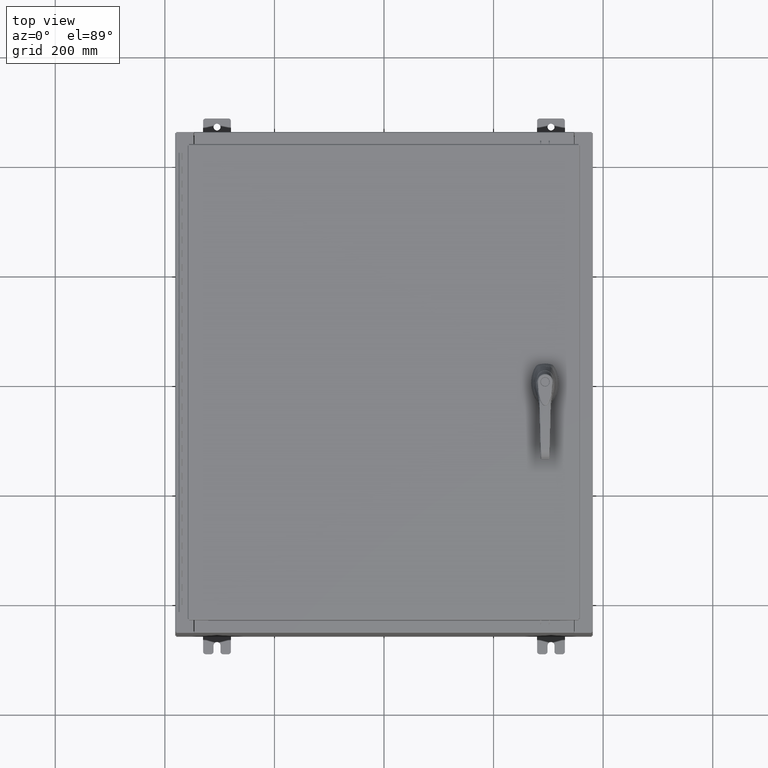
[diagram: clean part render]
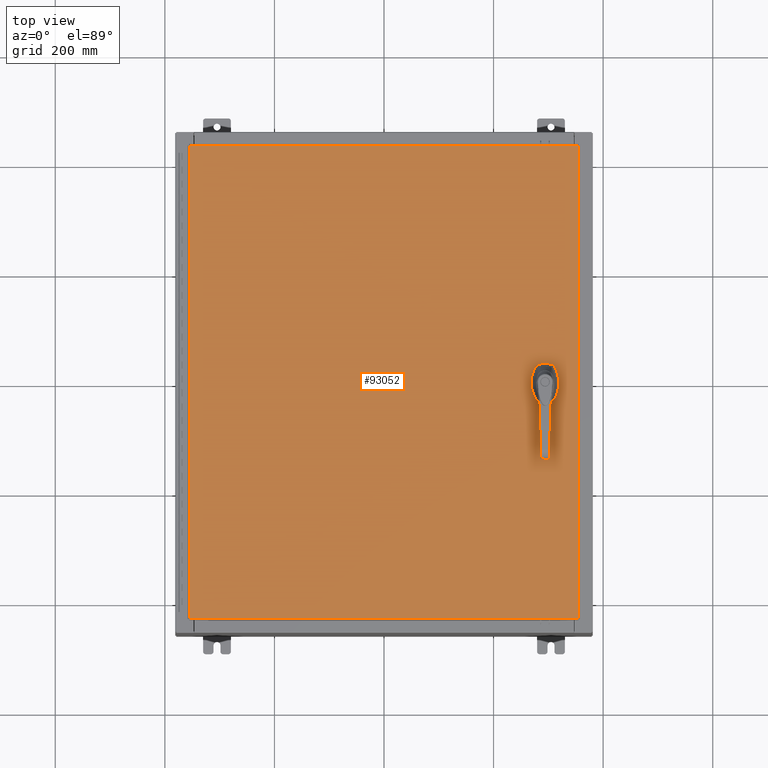
[diagram: same view with one face highlighted and labeled with its STEP entity id]
A machine part, top view. The second image highlights one B-rep face of the part: STEP entity #93052.
In plain terms, the highlighted planar face has unit normal (0, 0, -1).
Its self-contained STEP definition (entity closure, byte-faithful):
#294 = DIRECTION ( 'NONE',  ( 1.000000000000000000, 0.0000000000000000000, 0.0000000000000000000 ) ) ;
#414 = AXIS2_PLACEMENT_3D ( 'NONE', #88970, #31451, #98622 ) ;
#435 = FACE_BOUND ( 'NONE', #65214, .T. ) ;
#1687 = CARTESIAN_POINT ( 'NONE',  ( 11.17500000000006600, -0.2002273707563079800, 0.0000000000000000000 ) ) ;
#3119 = EDGE_CURVE ( 'NONE', #6716, #69160, #123820, .T. ) ;
#5666 = CARTESIAN_POINT ( 'NONE',  ( 11.17500000000006600, 0.0000000000000000000, 0.0000000000000000000 ) ) ;
#6716 = VERTEX_POINT ( 'NONE', #47188 ) ;
#8918 = EDGE_LOOP ( 'NONE', ( #72465, #88493, #74921, #71186 ) ) ;
#10551 = VERTEX_POINT ( 'NONE', #114066 ) ;
#11047 = CARTESIAN_POINT ( 'NONE',  ( 11.57799999999999400, -1.338000000000000100, 0.0000000000000000000 ) ) ;
#11628 = ORIENTED_EDGE ( 'NONE', *, *, #104780, .F. ) ;
#12072 = CARTESIAN_POINT ( 'NONE',  ( 0.0000000000000000000, 0.0000000000000000000, 0.0000000000000000000 ) ) ;
#19707 = CARTESIAN_POINT ( 'NONE',  ( -13.99030000000000700, 17.00630000000000000, -2.048885995248197400E-016 ) ) ;
#20447 = VERTEX_POINT ( 'NONE', #89212 ) ;
#20710 = DIRECTION ( 'NONE',  ( 1.000000000000000000, 0.0000000000000000000, 0.0000000000000000000 ) ) ;
#21605 = VERTEX_POINT ( 'NONE', #1687 ) ;
#21710 = DIRECTION ( 'NONE',  ( 0.0000000000000000000, 1.000000000000000000, 0.0000000000000000000 ) ) ;
#21724 = PLANE ( 'NONE',  #91244 ) ;
#25905 = FACE_BOUND ( 'NONE', #115758, .T. ) ;
#26221 = CIRCLE ( 'NONE', #414, 0.4499999999999168000 ) ;
#26922 = CARTESIAN_POINT ( 'NONE',  ( 11.37777262924368300, 0.4029999999999252000, 0.0000000000000000000 ) ) ;
#27741 = EDGE_CURVE ( 'NONE', #21605, #20447, #26221, .T. ) ;
#29049 = ORIENTED_EDGE ( 'NONE', *, *, #43543, .F. ) ;
#29154 = DIRECTION ( 'NONE',  ( 1.000000000000000000, -0.0000000000000000000, -0.0000000000000000000 ) ) ;
#31244 = EDGE_CURVE ( 'NONE', #20447, #65112, #46743, .T. ) ;
#31251 = CARTESIAN_POINT ( 'NONE',  ( 11.98099999999992200, -0.2002273707563079800, 0.0000000000000000000 ) ) ;
#31332 = DIRECTION ( 'NONE',  ( 0.0000000000000000000, 0.0000000000000000000, -1.000000000000000000 ) ) ;
#31451 = DIRECTION ( 'NONE',  ( -0.0000000000000000000, 0.0000000000000000000, 1.000000000000000000 ) ) ;
#31507 = CIRCLE ( 'NONE', #73901, 0.1715000000000011500 ) ;
#33265 = EDGE_CURVE ( 'NONE', #73392, #43858, #85500, .T. ) ;
#34693 = EDGE_CURVE ( 'NONE', #69160, #112505, #38793, .T. ) ;
#35356 = VERTEX_POINT ( 'NONE', #101693 ) ;
#37567 = AXIS2_PLACEMENT_3D ( 'NONE', #44171, #111246, #53731 ) ;
#38347 = ORIENTED_EDGE ( 'NONE', *, *, #95376, .F. ) ;
#38793 = LINE ( 'NONE', #64008, #109325 ) ;
#38877 = CARTESIAN_POINT ( 'NONE',  ( 11.57799999999999400, 0.0000000000000000000, 0.0000000000000000000 ) ) ;
#43089 = VECTOR ( 'NONE', #69711, 39.37007874015748100 ) ;
#43543 = EDGE_CURVE ( 'NONE', #65112, #68325, #106730, .T. ) ;
#43598 = CIRCLE ( 'NONE', #124320, 0.1715000000000011500 ) ;
#43858 = VERTEX_POINT ( 'NONE', #97514 ) ;
#44171 = CARTESIAN_POINT ( 'NONE',  ( 11.57799999999999400, 0.0000000000000000000, 0.0000000000000000000 ) ) ;
#46743 = LINE ( 'NONE', #103610, #120281 ) ;
#47188 = CARTESIAN_POINT ( 'NONE',  ( 13.99029999999999200, 17.00630000000000300, -1.297627796990525000E-015 ) ) ;
#48532 = DIRECTION ( 'NONE',  ( 1.000000000000000000, 0.0000000000000000000, 0.0000000000000000000 ) ) ;
#49287 = CARTESIAN_POINT ( 'NONE',  ( 11.57799999999999400, 0.0000000000000000000, 0.0000000000000000000 ) ) ;
#49312 = ORIENTED_EDGE ( 'NONE', *, *, #109404, .T. ) ;
#51729 = VECTOR ( 'NONE', #29154, 39.37007874015748100 ) ;
#51895 = ORIENTED_EDGE ( 'NONE', *, *, #31244, .F. ) ;
#53731 = DIRECTION ( 'NONE',  ( 1.000000000000000000, 0.0000000000000000000, 0.0000000000000000000 ) ) ;
#57660 = DIRECTION ( 'NONE',  ( -0.0000000000000000000, 0.0000000000000000000, 1.000000000000000000 ) ) ;
#58698 = CARTESIAN_POINT ( 'NONE',  ( 13.99029999999999200, 17.00630000000000300, -1.297627796990525000E-015 ) ) ;
#58889 = DIRECTION ( 'NONE',  ( 1.000000000000000000, 0.0000000000000000000, 0.0000000000000000000 ) ) ;
#63475 = DIRECTION ( 'NONE',  ( 0.0000000000000000000, -1.000000000000000000, 0.0000000000000000000 ) ) ;
#63804 = VERTEX_POINT ( 'NONE', #76741 ) ;
#64008 = CARTESIAN_POINT ( 'NONE',  ( -13.99030000000000700, 17.00630000000000000, -2.048885995248197400E-016 ) ) ;
#65112 = VERTEX_POINT ( 'NONE', #115888 ) ;
#65214 = EDGE_LOOP ( 'NONE', ( #49312, #29049, #51895, #122987, #72391, #117361, #11628, #91623 ) ) ;
#65563 = LINE ( 'NONE', #117553, #43089 ) ;
#68325 = VERTEX_POINT ( 'NONE', #31251 ) ;
#68552 = EDGE_CURVE ( 'NONE', #43858, #21605, #87768, .T. ) ;
#69160 = VERTEX_POINT ( 'NONE', #19707 ) ;
#69711 = DIRECTION ( 'NONE',  ( -1.000000000000000000, 0.0000000000000000000, 0.0000000000000000000 ) ) ;
#70459 = VECTOR ( 'NONE', #21710, 39.37007874015748100 ) ;
#70817 = ORIENTED_EDGE ( 'NONE', *, *, #74583, .F. ) ;
#71186 = ORIENTED_EDGE ( 'NONE', *, *, #34693, .T. ) ;
#72391 = ORIENTED_EDGE ( 'NONE', *, *, #68552, .F. ) ;
#72465 = ORIENTED_EDGE ( 'NONE', *, *, #86381, .T. ) ;
#72877 = CARTESIAN_POINT ( 'NONE',  ( 11.98099999999992000, 6.538620706741751200E-014, 0.0000000000000000000 ) ) ;
#73392 = VERTEX_POINT ( 'NONE', #26922 ) ;
#73901 = AXIS2_PLACEMENT_3D ( 'NONE', #11047, #78144, #20710 ) ;
#74583 = EDGE_CURVE ( 'NONE', #10551, #63804, #31507, .T. ) ;
#74921 = ORIENTED_EDGE ( 'NONE', *, *, #3119, .T. ) ;
#76741 = CARTESIAN_POINT ( 'NONE',  ( 11.40649999999999200, -1.338000000000000100, 0.0000000000000000000 ) ) ;
#76930 = FACE_OUTER_BOUND ( 'NONE', #8918, .T. ) ;
#77377 = CARTESIAN_POINT ( 'NONE',  ( -13.99030000000000700, -17.00630000000000000, -2.048885995248197400E-016 ) ) ;
#78144 = DIRECTION ( 'NONE',  ( -0.0000000000000000000, 0.0000000000000000000, 1.000000000000000000 ) ) ;
#78175 = DIRECTION ( 'NONE',  ( -1.000000000000000000, -0.0000000000000000000, -0.0000000000000000000 ) ) ;
#78354 = VERTEX_POINT ( 'NONE', #123565 ) ;
#80791 = AXIS2_PLACEMENT_3D ( 'NONE', #38877, #106038, #48532 ) ;
#85500 = CIRCLE ( 'NONE', #95570, 0.4499999999999168000 ) ;
#86381 = EDGE_CURVE ( 'NONE', #112505, #78354, #105853, .T. ) ;
#87768 = LINE ( 'NONE', #5666, #90757 ) ;
#88493 = ORIENTED_EDGE ( 'NONE', *, *, #101832, .T. ) ;
#88828 = CARTESIAN_POINT ( 'NONE',  ( 13.99029999999999200, -17.00630000000000000, -2.048885995248197400E-016 ) ) ;
#88970 = CARTESIAN_POINT ( 'NONE',  ( 11.57799999999999400, 0.0000000000000000000, 0.0000000000000000000 ) ) ;
#89212 = CARTESIAN_POINT ( 'NONE',  ( 11.37777262924368300, -0.4029999999999252000, 0.0000000000000000000 ) ) ;
#90090 = CARTESIAN_POINT ( 'NONE',  ( 11.98099999999992000, 0.2002273707563075900, 0.0000000000000000000 ) ) ;
#90156 = VERTEX_POINT ( 'NONE', #90090 ) ;
#90757 = VECTOR ( 'NONE', #63475, 39.37007874015748100 ) ;
#91244 = AXIS2_PLACEMENT_3D ( 'NONE', #12072, #31332, #98505 ) ;
#91623 = ORIENTED_EDGE ( 'NONE', *, *, #110655, .F. ) ;
#93025 = DIRECTION ( 'NONE',  ( 0.0000000000000000000, -1.000000000000000000, 0.0000000000000000000 ) ) ;
#93052 = ADVANCED_FACE ( 'NONE', ( #25905, #76930, #435 ), #21724, .F. ) ;
#93457 = VECTOR ( 'NONE', #111494, 39.37007874015748100 ) ;
#95376 = EDGE_CURVE ( 'NONE', #63804, #10551, #43598, .T. ) ;
#95570 = AXIS2_PLACEMENT_3D ( 'NONE', #49287, #116421, #58889 ) ;
#96064 = LINE ( 'NONE', #88828, #70459 ) ;
#97514 = CARTESIAN_POINT ( 'NONE',  ( 11.17500000000006600, 0.2002273707563079800, 0.0000000000000000000 ) ) ;
#97778 = CIRCLE ( 'NONE', #37567, 0.4499999999999168000 ) ;
#98298 = VECTOR ( 'NONE', #78175, 39.37007874015748100 ) ;
#98505 = DIRECTION ( 'NONE',  ( -1.000000000000000000, 0.0000000000000000000, -0.0000000000000000000 ) ) ;
#98622 = DIRECTION ( 'NONE',  ( 1.000000000000000000, 0.0000000000000000000, 0.0000000000000000000 ) ) ;
#101693 = CARTESIAN_POINT ( 'NONE',  ( 11.77822737075630300, 0.4029999999999252000, 0.0000000000000000000 ) ) ;
#101832 = EDGE_CURVE ( 'NONE', #78354, #6716, #96064, .T. ) ;
#103610 = CARTESIAN_POINT ( 'NONE',  ( 0.0000000000000000000, -0.4029999999999252000, 0.0000000000000000000 ) ) ;
#104780 = EDGE_CURVE ( 'NONE', #35356, #73392, #65563, .T. ) ;
#105853 = LINE ( 'NONE', #77377, #51729 ) ;
#106038 = DIRECTION ( 'NONE',  ( -0.0000000000000000000, 0.0000000000000000000, 1.000000000000000000 ) ) ;
#106730 = CIRCLE ( 'NONE', #80791, 0.4499999999999168000 ) ;
#109325 = VECTOR ( 'NONE', #93025, 39.37007874015748100 ) ;
#109404 = EDGE_CURVE ( 'NONE', #90156, #68325, #121958, .T. ) ;
#110655 = EDGE_CURVE ( 'NONE', #90156, #35356, #97778, .T. ) ;
#111246 = DIRECTION ( 'NONE',  ( -0.0000000000000000000, 0.0000000000000000000, 1.000000000000000000 ) ) ;
#111494 = DIRECTION ( 'NONE',  ( 5.457491617345625800E-015, -1.000000000000000000, 0.0000000000000000000 ) ) ;
#112505 = VERTEX_POINT ( 'NONE', #114269 ) ;
#114066 = CARTESIAN_POINT ( 'NONE',  ( 11.74949999999999400, -1.338000000000000100, 0.0000000000000000000 ) ) ;
#114269 = CARTESIAN_POINT ( 'NONE',  ( -13.99030000000000700, -17.00630000000000000, -2.048885995248197400E-016 ) ) ;
#115204 = CARTESIAN_POINT ( 'NONE',  ( 11.57799999999999400, -1.338000000000000100, 0.0000000000000000000 ) ) ;
#115758 = EDGE_LOOP ( 'NONE', ( #70817, #38347 ) ) ;
#115888 = CARTESIAN_POINT ( 'NONE',  ( 11.77822737075630300, -0.4029999999999252000, 0.0000000000000000000 ) ) ;
#116421 = DIRECTION ( 'NONE',  ( -0.0000000000000000000, 0.0000000000000000000, 1.000000000000000000 ) ) ;
#117361 = ORIENTED_EDGE ( 'NONE', *, *, #33265, .F. ) ;
#117553 = CARTESIAN_POINT ( 'NONE',  ( 0.0000000000000000000, 0.4029999999999252000, 0.0000000000000000000 ) ) ;
#120281 = VECTOR ( 'NONE', #122891, 39.37007874015748100 ) ;
#121958 = LINE ( 'NONE', #72877, #93457 ) ;
#122891 = DIRECTION ( 'NONE',  ( 1.000000000000000000, 0.0000000000000000000, 0.0000000000000000000 ) ) ;
#122987 = ORIENTED_EDGE ( 'NONE', *, *, #27741, .F. ) ;
#123565 = CARTESIAN_POINT ( 'NONE',  ( 13.99029999999999200, -17.00630000000000000, -2.048885995248197400E-016 ) ) ;
#123820 = LINE ( 'NONE', #58698, #98298 ) ;
#124320 = AXIS2_PLACEMENT_3D ( 'NONE', #115204, #57660, #294 ) ;